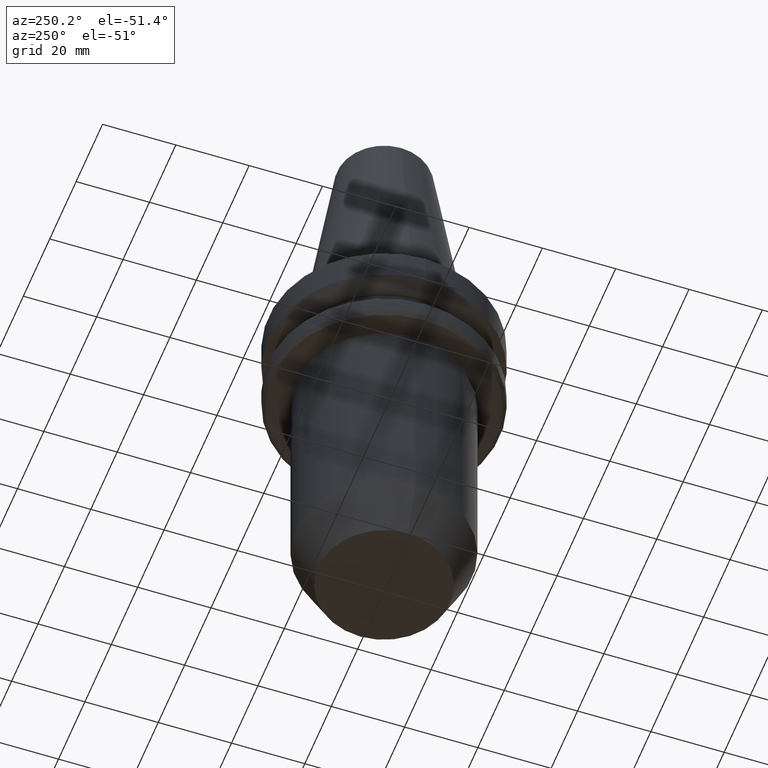
[diagram: clean part render]
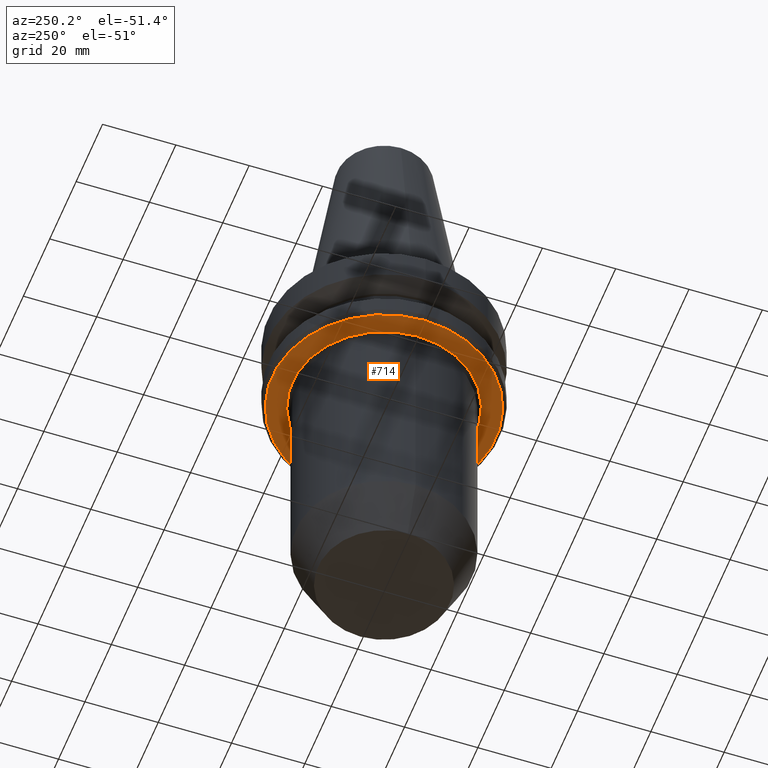
[diagram: same view with one face highlighted and labeled with its STEP entity id]
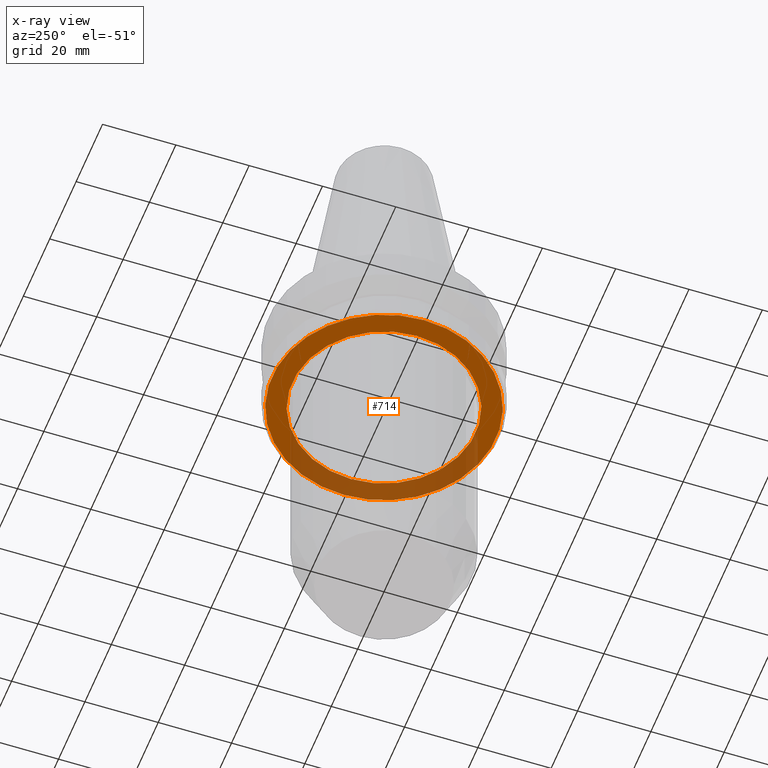
[diagram: x-ray of the same camera — body ghosted, the highlighted face saturated]
A machine part, auxiliary view. The second image highlights one B-rep face of the part: STEP entity #714.
The next image is the same camera in x-ray: the body ghosted, the highlighted face saturated — about 33% of this face is hidden behind the body in this view.
In plain terms, the highlighted planar face has unit normal (0, -0, 1).
Its self-contained STEP definition (entity closure, byte-faithful):
#5 = DIRECTION ( 'NONE',  ( -0.0000000000000000000, -0.0000000000000000000, 1.000000000000000000 ) ) ;
#31 = EDGE_LOOP ( 'NONE', ( #721, #708 ) ) ;
#79 = DIRECTION ( 'NONE',  ( 1.000000000000000000, 0.0000000000000000000, 0.0000000000000000000 ) ) ;
#82 = DIRECTION ( 'NONE',  ( 0.0000000000000000000, -0.0000000000000000000, 1.000000000000000000 ) ) ;
#87 = AXIS2_PLACEMENT_3D ( 'NONE', #233, #133, #955 ) ;
#118 = AXIS2_PLACEMENT_3D ( 'NONE', #134, #769, #937 ) ;
#133 = DIRECTION ( 'NONE',  ( -0.0000000000000000000, -0.0000000000000000000, 1.000000000000000000 ) ) ;
#134 = CARTESIAN_POINT ( 'NONE',  ( 0.0000000000000000000, 0.0000000000000000000, -26.31128678844368800 ) ) ;
#160 = AXIS2_PLACEMENT_3D ( 'NONE', #353, #5, #79 ) ;
#161 = AXIS2_PLACEMENT_3D ( 'NONE', #617, #82, #516 ) ;
#233 = CARTESIAN_POINT ( 'NONE',  ( 0.0000000000000000000, 0.0000000000000000000, -26.31128678844368800 ) ) ;
#349 = EDGE_LOOP ( 'NONE', ( #431, #632 ) ) ;
#353 = CARTESIAN_POINT ( 'NONE',  ( 0.0000000000000000000, 0.0000000000000000000, -26.31128678844368800 ) ) ;
#401 = CARTESIAN_POINT ( 'NONE',  ( 0.0000000000000000000, 0.0000000000000000000, -26.31128678844368800 ) ) ;
#431 = ORIENTED_EDGE ( 'NONE', *, *, #902, .T. ) ;
#437 = CARTESIAN_POINT ( 'NONE',  ( 25.00000000000000000, 0.0000000000000000000, -26.31128678844368800 ) ) ;
#439 = EDGE_CURVE ( 'NONE', #738, #483, #744, .T. ) ;
#460 = DIRECTION ( 'NONE',  ( 1.000000000000000000, 0.0000000000000000000, 0.0000000000000000000 ) ) ;
#463 = AXIS2_PLACEMENT_3D ( 'NONE', #401, #567, #460 ) ;
#483 = VERTEX_POINT ( 'NONE', #647 ) ;
#516 = DIRECTION ( 'NONE',  ( 1.000000000000000000, 0.0000000000000000000, 0.0000000000000000000 ) ) ;
#567 = DIRECTION ( 'NONE',  ( -0.0000000000000000000, -0.0000000000000000000, 1.000000000000000000 ) ) ;
#590 = VERTEX_POINT ( 'NONE', #437 ) ;
#617 = CARTESIAN_POINT ( 'NONE',  ( 0.0000000000000000000, 30.49999999999997200, -26.31128678844368800 ) ) ;
#618 = FACE_OUTER_BOUND ( 'NONE', #31, .T. ) ;
#632 = ORIENTED_EDGE ( 'NONE', *, *, #732, .T. ) ;
#642 = FACE_BOUND ( 'NONE', #349, .T. ) ;
#647 = CARTESIAN_POINT ( 'NONE',  ( 30.49999999999997200, 0.0000000000000000000, -26.31128678844368800 ) ) ;
#677 = CARTESIAN_POINT ( 'NONE',  ( -30.49999999999997200, 3.796405077356805400E-015, -26.31128678844368800 ) ) ;
#708 = ORIENTED_EDGE ( 'NONE', *, *, #439, .F. ) ;
#714 = ADVANCED_FACE ( 'NONE', ( #618, #642 ), #928, .F. ) ;
#721 = ORIENTED_EDGE ( 'NONE', *, *, #834, .F. ) ;
#732 = EDGE_CURVE ( 'NONE', #783, #590, #819, .T. ) ;
#738 = VERTEX_POINT ( 'NONE', #677 ) ;
#744 = CIRCLE ( 'NONE', #463, 30.49999999999997200 ) ;
#748 = CARTESIAN_POINT ( 'NONE',  ( -25.00000000000000000, 3.061616997868383000E-015, -26.31128678844368800 ) ) ;
#769 = DIRECTION ( 'NONE',  ( -0.0000000000000000000, -0.0000000000000000000, 1.000000000000000000 ) ) ;
#783 = VERTEX_POINT ( 'NONE', #748 ) ;
#819 = CIRCLE ( 'NONE', #160, 25.00000000000000000 ) ;
#834 = EDGE_CURVE ( 'NONE', #483, #738, #1012, .T. ) ;
#902 = EDGE_CURVE ( 'NONE', #590, #783, #932, .T. ) ;
#928 = PLANE ( 'NONE',  #161 ) ;
#932 = CIRCLE ( 'NONE', #87, 25.00000000000000000 ) ;
#937 = DIRECTION ( 'NONE',  ( 1.000000000000000000, 0.0000000000000000000, 0.0000000000000000000 ) ) ;
#955 = DIRECTION ( 'NONE',  ( 1.000000000000000000, 0.0000000000000000000, 0.0000000000000000000 ) ) ;
#1012 = CIRCLE ( 'NONE', #118, 30.49999999999997200 ) ;